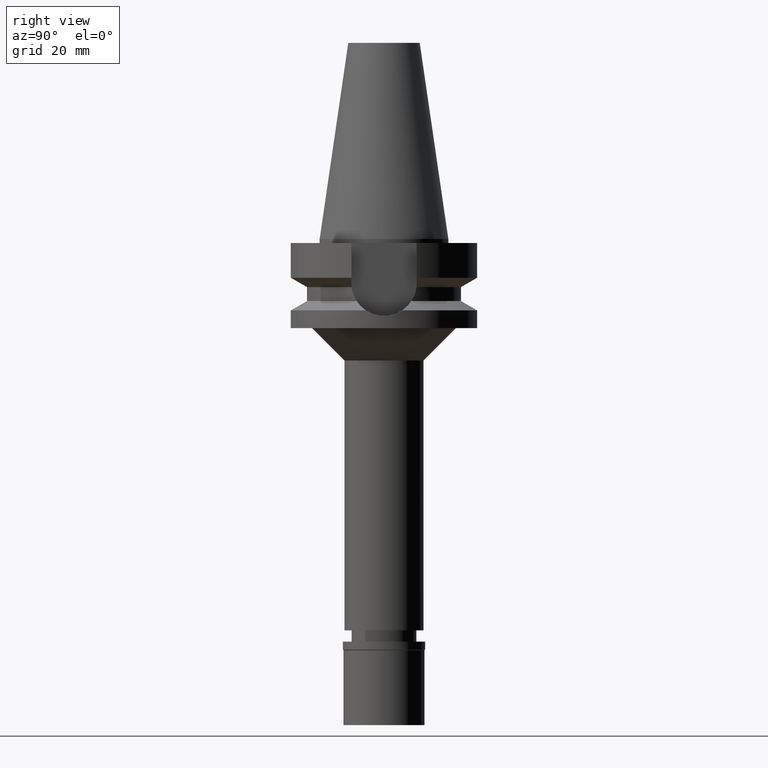
[diagram: clean part render]
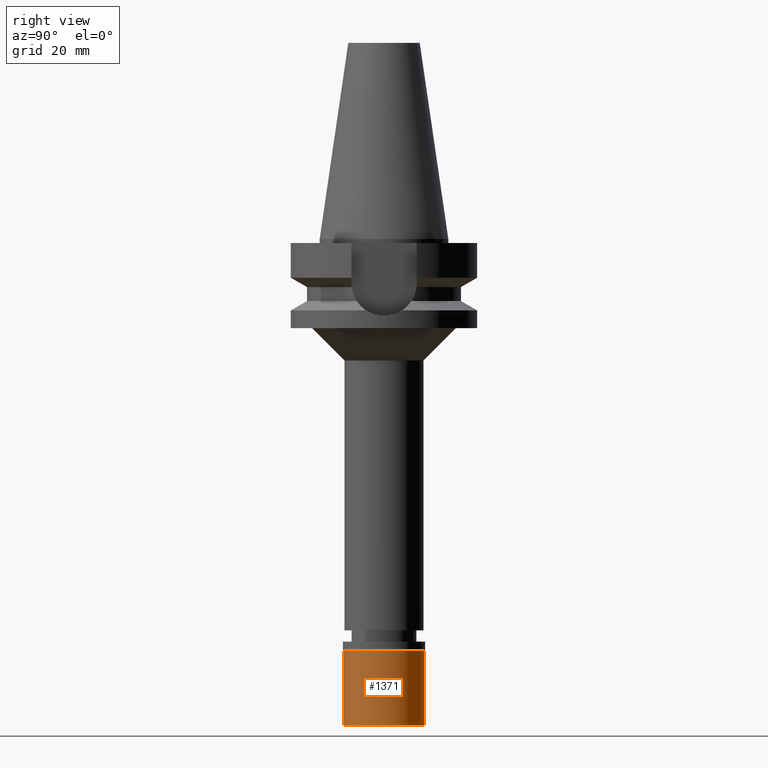
[diagram: same view with one face highlighted and labeled with its STEP entity id]
A machine part, right view. The second image highlights one B-rep face of the part: STEP entity #1371.
In plain terms, the highlighted cylindrical surface (partial cylindrical patch) has radius 10 mm, axis along (0, 0, -1).
Its self-contained STEP definition (entity closure, byte-faithful):
#2 = AXIS2_PLACEMENT_3D ( 'NONE', #580, #1061, #1274 ) ;
#56 = CIRCLE ( 'NONE', #2, 10.00000000000000000 ) ;
#110 = CARTESIAN_POINT ( 'NONE',  ( 0.0000000000000000000, 0.0000000000000000000, 0.0000000000000000000 ) ) ;
#154 = FACE_OUTER_BOUND ( 'NONE', #1717, .T. ) ;
#209 = VERTEX_POINT ( 'NONE', #710 ) ;
#249 = ORIENTED_EDGE ( 'NONE', *, *, #342, .F. ) ;
#305 = CARTESIAN_POINT ( 'NONE',  ( 0.0000000000000000000, 10.00000000000000000, -20.60000000000000142 ) ) ;
#342 = EDGE_CURVE ( 'NONE', #1266, #1089, #756, .T. ) ;
#390 = CARTESIAN_POINT ( 'NONE',  ( 0.0000000000000000000, 10.00000000000000000, -2.100000000000000089 ) ) ;
#478 = EDGE_CURVE ( 'NONE', #209, #1509, #1227, .T. ) ;
#578 = DIRECTION ( 'NONE',  ( 0.0000000000000000000, -1.000000000000000000, 0.0000000000000000000 ) ) ;
#580 = CARTESIAN_POINT ( 'NONE',  ( 0.0000000000000000000, 0.0000000000000000000, -20.60000000000000142 ) ) ;
#591 = CYLINDRICAL_SURFACE ( 'NONE', #819, 10.00000000000000000 ) ;
#710 = CARTESIAN_POINT ( 'NONE',  ( 0.0000000000000000000, -10.00000000000000000, -2.100000000000000089 ) ) ;
#756 = LINE ( 'NONE', #2858, #1365 ) ;
#794 = CIRCLE ( 'NONE', #2898, 10.00000000000000000 ) ;
#819 = AXIS2_PLACEMENT_3D ( 'NONE', #110, #2724, #578 ) ;
#965 = DIRECTION ( 'NONE',  ( 0.0000000000000000000, 0.0000000000000000000, -1.000000000000000000 ) ) ;
#1061 = DIRECTION ( 'NONE',  ( 0.0000000000000000000, 0.0000000000000000000, 1.000000000000000000 ) ) ;
#1089 = VERTEX_POINT ( 'NONE', #305 ) ;
#1227 = LINE ( 'NONE', #1422, #2608 ) ;
#1266 = VERTEX_POINT ( 'NONE', #390 ) ;
#1274 = DIRECTION ( 'NONE',  ( 0.0000000000000000000, -1.000000000000000000, 0.0000000000000000000 ) ) ;
#1365 = VECTOR ( 'NONE', #2378, 1000.000000000000000 ) ;
#1371 = ADVANCED_FACE ( 'NONE', ( #154 ), #591, .T. ) ;
#1422 = CARTESIAN_POINT ( 'NONE',  ( 0.0000000000000000000, -10.00000000000000000, -2.100000000000000089 ) ) ;
#1464 = DIRECTION ( 'NONE',  ( 0.0000000000000000000, 0.0000000000000000000, -1.000000000000000000 ) ) ;
#1509 = VERTEX_POINT ( 'NONE', #2762 ) ;
#1717 = EDGE_LOOP ( 'NONE', ( #2169, #2384, #1807, #249 ) ) ;
#1739 = DIRECTION ( 'NONE',  ( 0.0000000000000000000, 1.000000000000000000, 0.0000000000000000000 ) ) ;
#1807 = ORIENTED_EDGE ( 'NONE', *, *, #2159, .T. ) ;
#2159 = EDGE_CURVE ( 'NONE', #1509, #1089, #56, .T. ) ;
#2169 = ORIENTED_EDGE ( 'NONE', *, *, #2937, .T. ) ;
#2378 = DIRECTION ( 'NONE',  ( 0.0000000000000000000, 0.0000000000000000000, -1.000000000000000000 ) ) ;
#2384 = ORIENTED_EDGE ( 'NONE', *, *, #478, .T. ) ;
#2433 = CARTESIAN_POINT ( 'NONE',  ( 0.0000000000000000000, 0.0000000000000000000, -2.100000000000000089 ) ) ;
#2608 = VECTOR ( 'NONE', #1464, 1000.000000000000000 ) ;
#2724 = DIRECTION ( 'NONE',  ( 0.0000000000000000000, 0.0000000000000000000, -1.000000000000000000 ) ) ;
#2762 = CARTESIAN_POINT ( 'NONE',  ( 0.0000000000000000000, -10.00000000000000000, -20.60000000000000142 ) ) ;
#2858 = CARTESIAN_POINT ( 'NONE',  ( 0.0000000000000000000, 10.00000000000000000, -2.100000000000000089 ) ) ;
#2898 = AXIS2_PLACEMENT_3D ( 'NONE', #2433, #965, #1739 ) ;
#2937 = EDGE_CURVE ( 'NONE', #1266, #209, #794, .T. ) ;